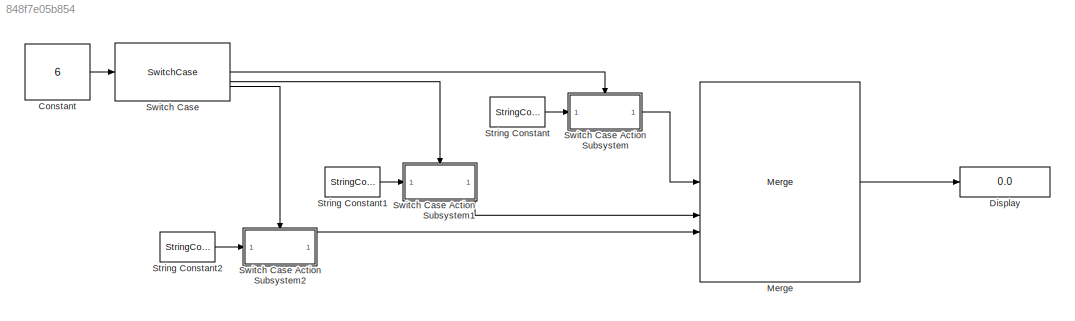
MODEL slx_848f7e05b854
KIND model
CONFIG AbsTol = auto
CONFIG EnableMultiTasking = off
CONFIG FixedStep = auto
CONFIG MaxStep = auto
CONFIG MinStep = auto
CONFIG RelTol = 1e-3
CONFIG SampleTimeConstraint = Unconstrained
CONFIG SolverName = VariableStepAuto
CONFIG StartTime = 0.0
CONFIG StopTime = 10.0
BLOCK [Constant] Constant
  Value = 6
BLOCK [Display] Display
  Decimation = 1
BLOCK [Merge] Merge
  Inputs = 3
BLOCK [StringConstant] String Constant
  String = "Stop!"
BLOCK [StringConstant] String Constant1
  String = "Go!"
BLOCK [StringConstant] String Constant2
  String = "Error!"
BLOCK [SwitchCase] Switch Case
  CaseConditions = {[3,7],6}
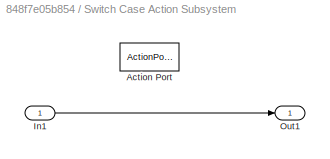
BLOCK [SubSystem] Switch Case Action Subsystem
  TreatAsAtomicUnit = on
BLOCK [ActionPort] Switch Case Action Subsystem/Action Port
  ActionPortLabel = case [ 3 7 ]:
BLOCK [Inport] Switch Case Action Subsystem/In1
BLOCK [Outport] Switch Case Action Subsystem/Out1
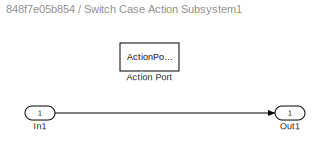
BLOCK [SubSystem] Switch Case Action Subsystem1
  TreatAsAtomicUnit = on
BLOCK [ActionPort] Switch Case Action Subsystem1/Action Port
  ActionPortLabel = case [ 6 ]:
BLOCK [Inport] Switch Case Action Subsystem1/In1
BLOCK [Outport] Switch Case Action Subsystem1/Out1
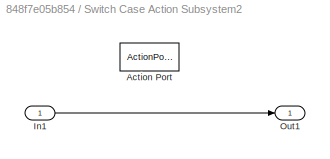
BLOCK [SubSystem] Switch Case Action Subsystem2
  TreatAsAtomicUnit = on
BLOCK [ActionPort] Switch Case Action Subsystem2/Action Port
  ActionPortLabel = default:
BLOCK [Inport] Switch Case Action Subsystem2/In1
BLOCK [Outport] Switch Case Action Subsystem2/Out1
LINE Constant:1 -> Switch Case:1
LINE Merge:1 -> Display:1
LINE String Constant1:1 -> Switch Case Action Subsystem1:1
LINE String Constant2:1 -> Switch Case Action Subsystem2:1
LINE String Constant:1 -> Switch Case Action Subsystem:1
LINE Switch Case Action Subsystem/In1:1 -> Switch Case Action Subsystem/Out1:1
LINE Switch Case Action Subsystem1/In1:1 -> Switch Case Action Subsystem1/Out1:1
LINE Switch Case Action Subsystem1:1 -> Merge:2
LINE Switch Case Action Subsystem2/In1:1 -> Switch Case Action Subsystem2/Out1:1
LINE Switch Case Action Subsystem2:1 -> Merge:3
LINE Switch Case Action Subsystem:1 -> Merge:1
LINE Switch Case:1 -> Switch Case Action Subsystem:ifaction
LINE Switch Case:2 -> Switch Case Action Subsystem1:ifaction
LINE Switch Case:3 -> Switch Case Action Subsystem2:ifaction
